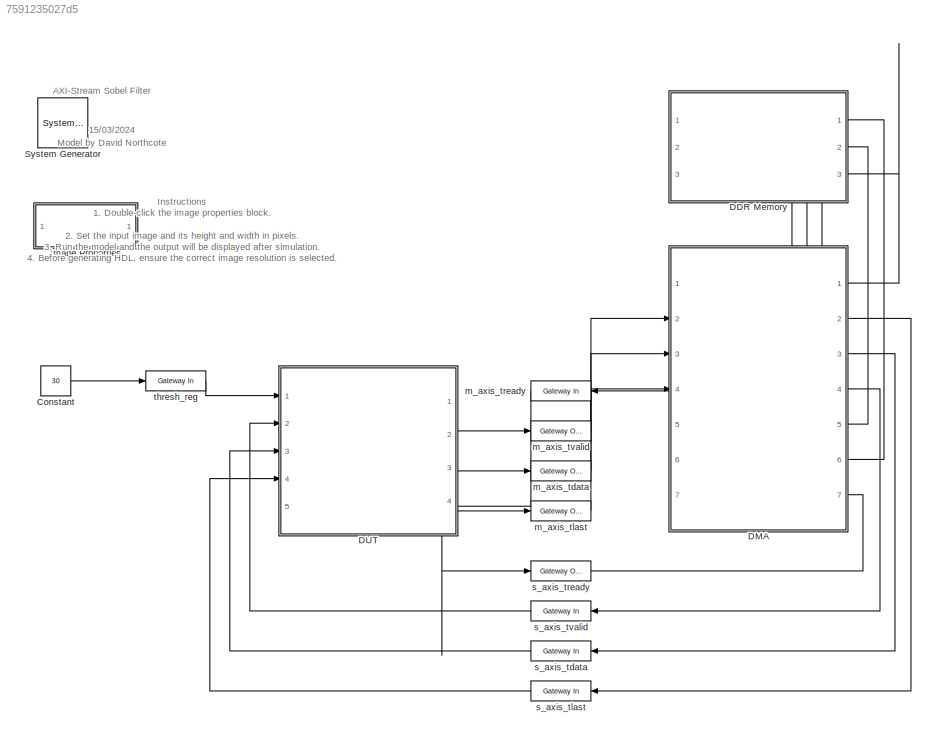
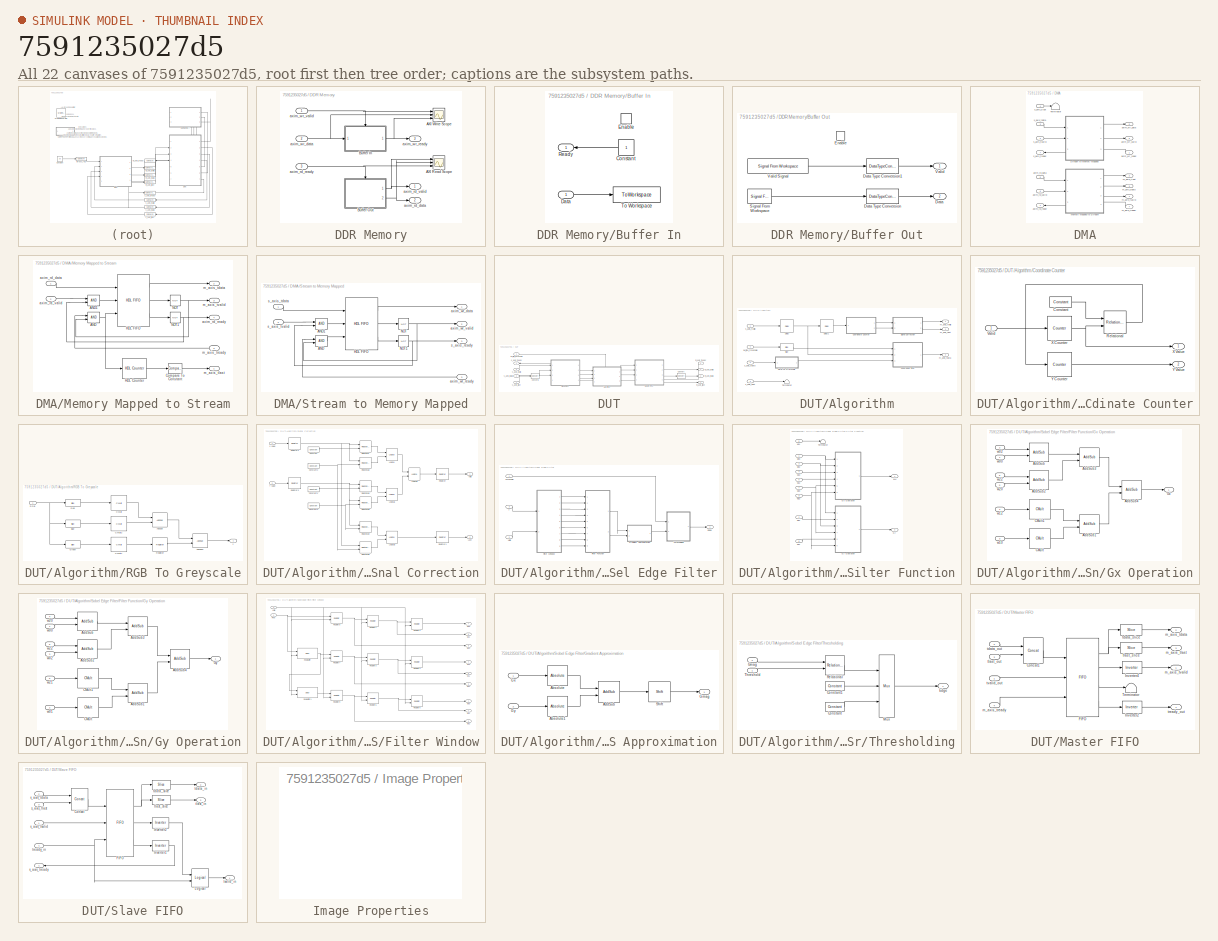
[diagram: thumbnail index - all 22 canvases of the model, root first then tree order]
MODEL slx_7591235027d5
KIND model
CONFIG AbsTol = auto
CONFIG EnableMultiTasking = off
CONFIG FixedStep = auto
CONFIG InitFcn = height = str2num(get_param([bdroot, '/Image Properties'], 'height'));\nwidth = str2num(get_param([bdroot, '/Image Properties'], 'width'));\nI = imresize(eval(get_param([bdroot, '/Image Properties'], 'image')), [(height) (width)]);\nI = padarray(I, [1 1], 'replicate');\nbufferOut = uint32(double(I(:,:,1))*2^16 + double(I(:,:,3))*2^8 + double(I(:,:,2)));\nbufferOut = reshape(bufferOut', [width+2, height+...<+30ch>
CONFIG MaxStep = auto
CONFIG MinStep = auto
CONFIG PostLoadFcn = ratio = 1/6;\nset(0,'units','pixels');\npixels = get(0,'screensize');\npoint1 = round(pixels(3)*ratio); \npoint2 = round(pixels(4)*ratio); \npoint3 = pixels(3)-round(pixels(3)*ratio); \npoint4 = pixels(4)-round(pixels(4)*ratio);\nh = get_param(gcs,'handle');\nset_param(h,'location',[point1 point2 point3 point4]);\npause(0.2);\nset_param(h,'Zoomfactor','fit to view');\n\nclear ratio pixels point1 point2 point3...<+120ch>
CONFIG PreLoadFcn = clear all;\n\nfs = 100e6;
CONFIG RelTol = 1e-3
CONFIG SampleTimeConstraint = Unconstrained
CONFIG Solver = VariableStepAuto
CONFIG SolverName = VariableStepAuto
CONFIG StartTime = 0.0
CONFIG StopFcn = imtool(I);\nimtool(uint8(reshape(bufferIn, [width, height])'));
CONFIG StopTime = (height*width)/fs + (width*6)/fs + 128/fs
BLOCK [Reference]  System Generator  REF=xbsIndex_r4/ System Generator
  AttributesFormatString = System\nGenerator
  Ports = []
  SourceBlock = xbsIndex_r4/ System Generator
  SourceType = Xilinx System Generator Block
  Tag = genX
  UserDataPersistent = on
BLOCK [Constant] Constant
  SampleTime = -1
  Value = 30
BLOCK [SubSystem] DDR Memory
  PortSchema = {"entries":[{"content":{"sides":[{"content":{"connectorIds":["Out3","In1","In2"]},"type":"ConnectorPlacement.EquallySpacedRectSide","uuid":"10820561-fcd3-42da-ac38-14c6f993f770"},{"content":{"connectorIds":["In3","Out1","Out2"],"side":"RIGHT"},"type":"ConnectorPlacement.EquallySpacedRectSide","uuid":"072276f7-1cf8-495f-bb0a-1bca7e8326ea"},{"content":{"connectorIds":[],"side":"TOP"},"type":"Connect...<+268ch>
  Ports = [3, 3]
  RequestExecContextInheritance = off
BLOCK [Scope] DDR Memory/AXI Read Scope
  DefaultConfigurationName = spbscopes.TimeScopeBlockCfg
  Floating = off
  NumInputPorts = 3
  Ports = [3]
  ScopeSpecificationString = spbscopes.TimeScopeBlockCfg('CurrentConfiguration', extmgr.ConfigurationSet(extmgr.Configuration('Core','General UI',true,'FigureColor',[0.8 0.8 0.8]),extmgr.Configuration('Core','Source UI',true),extmgr.Configuration('Sources','WiredSimulink',true,'DataLoggingVariableName','ScopeData1'),extmgr.Configuration('Visuals','Time Domain',true,'DisplayLayoutDimensions',[3 1],'DisplayPropertyDefaults',str...<+4960ch>
  UserDataPersistent = on
BLOCK [Scope] DDR Memory/AXI Write Scope
  DefaultConfigurationName = spbscopes.TimeScopeBlockCfg
  Floating = off
  NumInputPorts = 3
  Ports = [3]
  ScopeSpecificationString = spbscopes.TimeScopeBlockCfg('CurrentConfiguration', extmgr.ConfigurationSet(extmgr.Configuration('Core','General UI',true,'FigureColor',[0.8 0.8 0.8]),extmgr.Configuration('Core','Source UI',true),extmgr.Configuration('Sources','WiredSimulink',true),extmgr.Configuration('Visuals','Time Domain',true,'DisplayLayoutDimensions',[3 1],'DisplayPropertyDefaults',struct('YLabelReal','Amplitude','ColorOrde...<+4884ch>
  UserDataPersistent = on
BLOCK [SubSystem] DDR Memory/Buffer In
  Ports = [1, 1, 1]
  RequestExecContextInheritance = off
BLOCK [Constant] DDR Memory/Buffer In/Constant
  OutDataTypeStr = boolean
  SampleTime = -1
BLOCK [Inport] DDR Memory/Buffer In/Data
BLOCK [EnablePort] DDR Memory/Buffer In/Enable
  Ports = []
BLOCK [Outport] DDR Memory/Buffer In/Ready
BLOCK [ToWorkspace] DDR Memory/Buffer In/To Workspace
  FixptAsFi = on
  MaxDataPoints = inf
  Ports = [1]
  SampleTime = -1
  VariableName = bufferIn
BLOCK [SubSystem] DDR Memory/Buffer Out
  Ports = [0, 2, 1]
  RequestExecContextInheritance = off
BLOCK [Outport] DDR Memory/Buffer Out/Data
  Port = 2
BLOCK [DataTypeConversion] DDR Memory/Buffer Out/Data Type Conversion
  OutDataTypeStr = dtypeStr
  RndMeth = Floor
  SaturateOnIntegerOverflow = off
BLOCK [DataTypeConversion] DDR Memory/Buffer Out/Data Type Conversion1
  OutDataTypeStr = boolean
  RndMeth = Floor
  SaturateOnIntegerOverflow = off
BLOCK [EnablePort] DDR Memory/Buffer Out/Enable
  Ports = []
BLOCK [Reference] DDR Memory/Buffer Out/Signal From Workspace  REF=dspsrcs4/Signal From
Workspace
  Ports = [0, 1]
  SourceBlock = dspsrcs4/Signal From\nWorkspace
  SourceProductBaseCode = DS
  SourceType = Signal From Workspace
BLOCK [Outport] DDR Memory/Buffer Out/Valid
BLOCK [Reference] DDR Memory/Buffer Out/Valid Signal  REF=dspsrcs4/Signal From
Workspace
  Ports = [0, 1]
  SourceBlock = dspsrcs4/Signal From\nWorkspace
  SourceProductBaseCode = DS
  SourceType = Signal From Workspace
BLOCK [Outport] DDR Memory/axim_rd_data
  Port = 2
BLOCK [Inport] DDR Memory/axim_rd_ready
  Port = 3
BLOCK [Outport] DDR Memory/axim_rd_valid
BLOCK [Inport] DDR Memory/axim_wr_data
  Port = 2
BLOCK [Outport] DDR Memory/axim_wr_ready
  Port = 3
BLOCK [Inport] DDR Memory/axim_wr_valid
BLOCK [SubSystem] DMA
  PortSchema = {"entries":[{"content":{"sides":[{"content":{"connectorIds":["Out5","Out6","In1","Out7","In2","In3","In4"]},"type":"ConnectorPlacement.EquallySpacedRectSide","uuid":"c102abcb-2e00-4fd7-85df-5b9b0b898bd0"},{"content":{"connectorIds":["In5","In6","Out1","Out2","Out3","Out4","In7"],"side":"RIGHT"},"type":"ConnectorPlacement.EquallySpacedRectSide","uuid":"9e178eef-1e1d-41e3-971e-2eb7c6a5387e"},{"conte...<+464ch>
  Ports = [7, 7]
  RequestExecContextInheritance = off
BLOCK [SubSystem] DMA/Memory Mapped to Stream
  PortSchema = {"entries":[{"content":{"sides":[{"content":{"connectorIds":["In1","In2","Out4"]},"type":"ConnectorPlacement.EquallySpacedRectSide","uuid":"10820561-fcd3-42da-ac38-14c6f993f770"},{"content":{"connectorIds":["Out1","Out2","Out3","In3"],"side":"RIGHT"},"type":"ConnectorPlacement.EquallySpacedRectSide","uuid":"072276f7-1cf8-495f-bb0a-1bca7e8326ea"},{"content":{"connectorIds":[],"side":"TOP"},"type":"...<+275ch>
  Ports = [3, 4]
  RequestExecContextInheritance = off
BLOCK [Logic] DMA/Memory Mapped to Stream/AND
  AllPortsSameDT = off
  IconShape = distinctive
  OutDataTypeStr = boolean
  Ports = [2, 1]
BLOCK [Logic] DMA/Memory Mapped to Stream/AND1
  AllPortsSameDT = off
  IconShape = distinctive
  OutDataTypeStr = boolean
  Ports = [2, 1]
BLOCK [Reference] DMA/Memory Mapped to Stream/Compare To Constant  REF=simulink/Logic and Bit
Operations/Compare
To Constant
  Ports = [1, 1]
  SourceBlock = simulink/Logic and Bit\nOperations/Compare\nTo Constant
  SourceProductBaseCode = SL
  SourceType = Compare To Constant
BLOCK [Reference] DMA/Memory Mapped to Stream/HDL Counter  REF=hdlsllib/Sources/HDL Counter
  Ports = [1, 1]
  SourceBlock = hdlsllib/Sources/HDL Counter
  SourceProductBaseCode = SL
  SourceType = HDL Counter
BLOCK [Reference] DMA/Memory Mapped to Stream/HDL FIFO  REF=hdlsllib/HDL RAMs/HDL FIFO
  Ports = [3, 3]
  SourceBlock = hdlsllib/HDL RAMs/HDL FIFO
  SourceProductBaseCode = SL
  SourceType = HDL_FIFO
BLOCK [Logic] DMA/Memory Mapped to Stream/NOT
  AllPortsSameDT = off
  IconShape = distinctive
  Operator = NOT
  OutDataTypeStr = boolean
  Ports = [1, 1]
BLOCK [Logic] DMA/Memory Mapped to Stream/NOT1
  AllPortsSameDT = off
  IconShape = distinctive
  Operator = NOT
  OutDataTypeStr = boolean
  Ports = [1, 1]
BLOCK [Inport] DMA/Memory Mapped to Stream/axim_rd_data
BLOCK [Outport] DMA/Memory Mapped to Stream/axim_rd_ready
  Port = 4
  VectorParamsAs1DForOutWhenUnconnected = off
BLOCK [Inport] DMA/Memory Mapped to Stream/axim_rd_valid
  Port = 2
BLOCK [Outport] DMA/Memory Mapped to Stream/m_axis_tdata
  Port = 2
  VectorParamsAs1DForOutWhenUnconnected = off
BLOCK [Outport] DMA/Memory Mapped to Stream/m_axis_tlast
  VectorParamsAs1DForOutWhenUnconnected = off
BLOCK [Inport] DMA/Memory Mapped to Stream/m_axis_tready
  Port = 3
BLOCK [Outport] DMA/Memory Mapped to Stream/m_axis_tvalid
  Port = 3
  VectorParamsAs1DForOutWhenUnconnected = off
BLOCK [SubSystem] DMA/Stream to Memory Mapped
  PortSchema = {"entries":[{"content":{"sides":[{"content":{"connectorIds":["In1","In2","Out3"]},"type":"ConnectorPlacement.EquallySpacedRectSide","uuid":"10820561-fcd3-42da-ac38-14c6f993f770"},{"content":{"connectorIds":["Out1","Out2","In3"],"side":"RIGHT"},"type":"ConnectorPlacement.EquallySpacedRectSide","uuid":"072276f7-1cf8-495f-bb0a-1bca7e8326ea"},{"content":{"connectorIds":[],"side":"TOP"},"type":"Connect...<+268ch>
  Ports = [3, 3]
  RequestExecContextInheritance = off
BLOCK [Logic] DMA/Stream to Memory Mapped/AND
  AllPortsSameDT = off
  IconShape = distinctive
  OutDataTypeStr = boolean
  Ports = [2, 1]
BLOCK [Logic] DMA/Stream to Memory Mapped/AND1
  AllPortsSameDT = off
  IconShape = distinctive
  OutDataTypeStr = boolean
  Ports = [2, 1]
BLOCK [Reference] DMA/Stream to Memory Mapped/HDL FIFO  REF=hdlsllib/HDL RAMs/HDL FIFO
  Ports = [3, 3]
  SourceBlock = hdlsllib/HDL RAMs/HDL FIFO
  SourceProductBaseCode = SL
  SourceType = HDL_FIFO
BLOCK [Logic] DMA/Stream to Memory Mapped/NOT
  AllPortsSameDT = off
  IconShape = distinctive
  Operator = NOT
  OutDataTypeStr = boolean
  Ports = [1, 1]
BLOCK [Logic] DMA/Stream to Memory Mapped/NOT1
  AllPortsSameDT = off
  IconShape = distinctive
  Operator = NOT
  OutDataTypeStr = boolean
  Ports = [1, 1]
BLOCK [Outport] DMA/Stream to Memory Mapped/axim_wr_data
  VectorParamsAs1DForOutWhenUnconnected = off
BLOCK [Inport] DMA/Stream to Memory Mapped/axim_wr_ready
  Port = 3
BLOCK [Outport] DMA/Stream to Memory Mapped/axim_wr_valid
  Port = 2
  VectorParamsAs1DForOutWhenUnconnected = off
BLOCK [Outport] DMA/Stream to Memory Mapped/s_axis_ready
  Port = 3
  VectorParamsAs1DForOutWhenUnconnected = off
BLOCK [Inport] DMA/Stream to Memory Mapped/s_axis_tdata
BLOCK [Inport] DMA/Stream to Memory Mapped/s_axis_tvalid
  Port = 2
BLOCK [Terminator] DMA/Terminator
BLOCK [Inport] DMA/axim_rd_data
  Port = 5
BLOCK [Outport] DMA/axim_rd_ready
BLOCK [Inport] DMA/axim_rd_valid
  Port = 6
BLOCK [Outport] DMA/axim_wr_data
  Port = 5
BLOCK [Inport] DMA/axim_wr_ready
BLOCK [Outport] DMA/axim_wr_valid
  Port = 6
BLOCK [Outport] DMA/m_axis_tdata
  Port = 3
  VectorParamsAs1DForOutWhenUnconnected = off
BLOCK [Outport] DMA/m_axis_tlast
  Port = 2
  VectorParamsAs1DForOutWhenUnconnected = off
BLOCK [Inport] DMA/m_axis_tready
  Port = 7
BLOCK [Outport] DMA/m_axis_tvalid
  Port = 4
  VectorParamsAs1DForOutWhenUnconnected = off
BLOCK [Inport] DMA/s_axis_tdata
  Port = 3
BLOCK [Inport] DMA/s_axis_tlast
  Port = 4
BLOCK [Outport] DMA/s_axis_tready
  Port = 7
  VectorParamsAs1DForOutWhenUnconnected = off
BLOCK [Inport] DMA/s_axis_tvalid
  Port = 2
BLOCK [SubSystem] DUT
  PortSchema = {"entries":[{"content":{"sides":[{"content":{"connectorIds":["In1","Out4","In2","In3","In4"]},"type":"ConnectorPlacement.EquallySpacedRectSide","uuid":"c102abcb-2e00-4fd7-85df-5b9b0b898bd0"},{"content":{"connectorIds":["In5","Out1","Out2","Out3"],"side":"RIGHT"},"type":"ConnectorPlacement.EquallySpacedRectSide","uuid":"9e178eef-1e1d-41e3-971e-2eb7c6a5387e"},{"content":{"connectorIds":[],"side":"TO...<+287ch>
  Ports = [5, 4]
  RequestExecContextInheritance = off
BLOCK [SubSystem] DUT/Algorithm
  PortSchema = {"entries":[{"content":{"sides":[{"content":{"connectorIds":["In1","In2","In3"]},"type":"ConnectorPlacement.EquallySpacedRectSide","uuid":"bc8f8d6b-03d4-4b1c-a4ca-076773aa8b9e"},{"content":{"connectorIds":["Out1","Out2","Out3"],"side":"RIGHT"},"type":"ConnectorPlacement.EquallySpacedRectSide","uuid":"0d37fd61-55f1-43d8-b642-e7957f527b3a"},{"content":{"connectorIds":["In4"],"side":"TOP"},"type":"Co...<+273ch>
  Ports = [4, 3]
  RequestExecContextInheritance = off
BLOCK [SubSystem] DUT/Algorithm/Coordinate Counter
  Ports = [1, 2]
  RequestExecContextInheritance = off
BLOCK [Reference] DUT/Algorithm/Coordinate Counter/Constant  REF=xbsIndex_r4/Constant
  Ports = [0, 1]
  SourceBlock = xbsIndex_r4/Constant
  SourceType = Xilinx Constant Block Block
BLOCK [Reference] DUT/Algorithm/Coordinate Counter/Relational  REF=xbsIndex_r4/Relational
  Ports = [2, 1]
  SourceBlock = xbsIndex_r4/Relational
  SourceType = Xilinx Arithmetic Relational Operator Block
BLOCK [Inport] DUT/Algorithm/Coordinate Counter/Valid
BLOCK [Reference] DUT/Algorithm/Coordinate Counter/X Counter  REF=xbsIndex_r4/Counter
  Ports = [1, 1]
  SourceBlock = xbsIndex_r4/Counter
  SourceType = Xilinx Counter Block
BLOCK [Outport] DUT/Algorithm/Coordinate Counter/X Value
  VectorParamsAs1DForOutWhenUnconnected = off
BLOCK [Reference] DUT/Algorithm/Coordinate Counter/Y Counter  REF=xbsIndex_r4/Counter
  Ports = [1, 1]
  SourceBlock = xbsIndex_r4/Counter
  SourceType = Xilinx Counter Block
BLOCK [Outport] DUT/Algorithm/Coordinate Counter/Y Value
  Port = 2
  VectorParamsAs1DForOutWhenUnconnected = off
BLOCK [Reference] DUT/Algorithm/Delay  REF=xbsIndex_r4/Delay
  Ports = [1, 1]
  SourceBlock = xbsIndex_r4/Delay
  SourceType = Xilinx Delay Block
BLOCK [Reference] DUT/Algorithm/Delay1  REF=xbsIndex_r4/Delay
  Ports = [1, 1]
  SourceBlock = xbsIndex_r4/Delay
  SourceType = Xilinx Delay Block
BLOCK [SubSystem] DUT/Algorithm/RGB To Greyscale
  Ports = [1, 1]
  RequestExecContextInheritance = off
BLOCK [Reference] DUT/Algorithm/RGB To Greyscale/AddSub  REF=xbsIndex_r4/AddSub
  Ports = [2, 1]
  SourceBlock = xbsIndex_r4/AddSub
  SourceType = Xilinx Adder/Subtracter Block
BLOCK [Reference] DUT/Algorithm/RGB To Greyscale/AddSub1  REF=xbsIndex_r4/AddSub
  Ports = [2, 1]
  SourceBlock = xbsIndex_r4/AddSub
  SourceType = Xilinx Adder/Subtracter Block
BLOCK [Reference] DUT/Algorithm/RGB To Greyscale/Blue  REF=xbsIndex_r4/Slice
  Ports = [1, 1]
  SourceBlock = xbsIndex_r4/Slice
  SourceType = Xilinx Bit Slice Extractor Block
BLOCK [Reference] DUT/Algorithm/RGB To Greyscale/CMult  REF=xbsIndex_r4/CMult
  Ports = [1, 1]
  SourceBlock = xbsIndex_r4/CMult
  SourceType = Xilinx Constant Multiplier Block
BLOCK [Reference] DUT/Algorithm/RGB To Greyscale/CMult1  REF=xbsIndex_r4/CMult
  Ports = [1, 1]
  SourceBlock = xbsIndex_r4/CMult
  SourceType = Xilinx Constant Multiplier Block
BLOCK [Reference] DUT/Algorithm/RGB To Greyscale/CMult2  REF=xbsIndex_r4/CMult
  Ports = [1, 1]
  SourceBlock = xbsIndex_r4/CMult
  SourceType = Xilinx Constant Multiplier Block
BLOCK [Reference] DUT/Algorithm/RGB To Greyscale/Green  REF=xbsIndex_r4/Slice
  Ports = [1, 1]
  SourceBlock = xbsIndex_r4/Slice
  SourceType = Xilinx Bit Slice Extractor Block
BLOCK [Inport] DUT/Algorithm/RGB To Greyscale/RGB
BLOCK [Reference] DUT/Algorithm/RGB To Greyscale/Red  REF=xbsIndex_r4/Slice
  Ports = [1, 1]
  SourceBlock = xbsIndex_r4/Slice
  SourceType = Xilinx Bit Slice Extractor Block
BLOCK [Reference] DUT/Algorithm/RGB To Greyscale/Register  REF=xbsIndex_r4/Register
  Ports = [1, 1]
  SourceBlock = xbsIndex_r4/Register
  SourceType = Xilinx Register Block
BLOCK [Outport] DUT/Algorithm/RGB To Greyscale/Y
  VectorParamsAs1DForOutWhenUnconnected = off
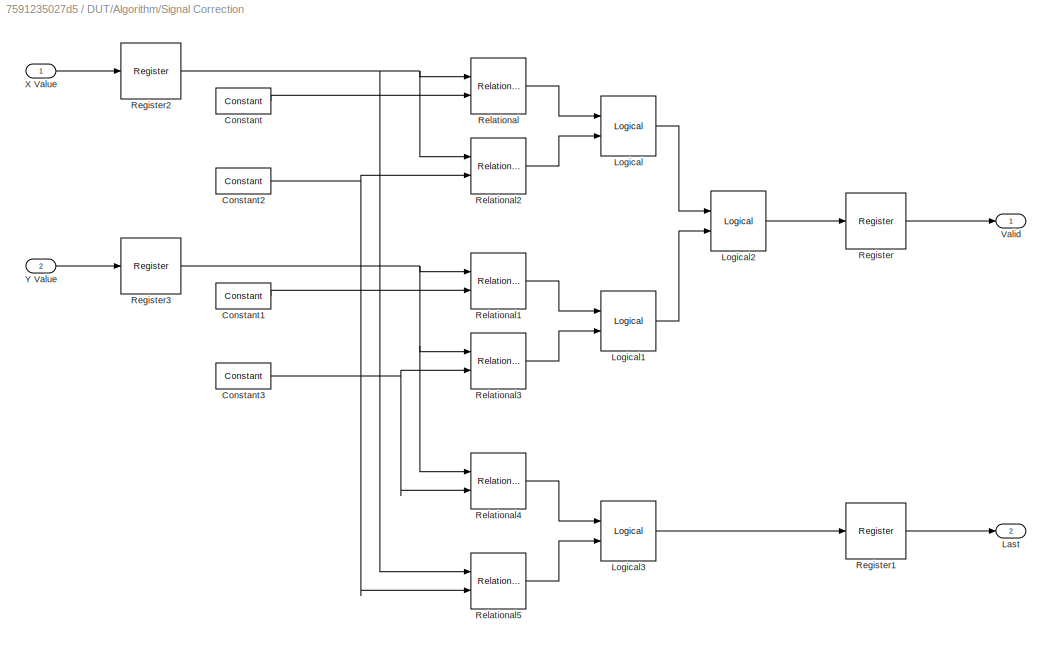
BLOCK [SubSystem] DUT/Algorithm/Signal Correction
  Ports = [2, 2]
  RequestExecContextInheritance = off
BLOCK [Reference] DUT/Algorithm/Signal Correction/Constant  REF=xbsIndex_r4/Constant
  Ports = [0, 1]
  SourceBlock = xbsIndex_r4/Constant
  SourceType = Xilinx Constant Block Block
BLOCK [Reference] DUT/Algorithm/Signal Correction/Constant1  REF=xbsIndex_r4/Constant
  Ports = [0, 1]
  SourceBlock = xbsIndex_r4/Constant
  SourceType = Xilinx Constant Block Block
BLOCK [Reference] DUT/Algorithm/Signal Correction/Constant2  REF=xbsIndex_r4/Constant
  Ports = [0, 1]
  SourceBlock = xbsIndex_r4/Constant
  SourceType = Xilinx Constant Block Block
BLOCK [Reference] DUT/Algorithm/Signal Correction/Constant3  REF=xbsIndex_r4/Constant
  Ports = [0, 1]
  SourceBlock = xbsIndex_r4/Constant
  SourceType = Xilinx Constant Block Block
BLOCK [Outport] DUT/Algorithm/Signal Correction/Last
  Port = 2
  VectorParamsAs1DForOutWhenUnconnected = off
BLOCK [Reference] DUT/Algorithm/Signal Correction/Logical  REF=xbsIndex_r4/Logical
  Ports = [2, 1]
  SourceBlock = xbsIndex_r4/Logical
  SourceType = Xilinx Logical Block Block
BLOCK [Reference] DUT/Algorithm/Signal Correction/Logical1  REF=xbsIndex_r4/Logical
  Ports = [2, 1]
  SourceBlock = xbsIndex_r4/Logical
  SourceType = Xilinx Logical Block Block
BLOCK [Reference] DUT/Algorithm/Signal Correction/Logical2  REF=xbsIndex_r4/Logical
  Ports = [2, 1]
  SourceBlock = xbsIndex_r4/Logical
  SourceType = Xilinx Logical Block Block
BLOCK [Reference] DUT/Algorithm/Signal Correction/Logical3  REF=xbsIndex_r4/Logical
  Ports = [2, 1]
  SourceBlock = xbsIndex_r4/Logical
  SourceType = Xilinx Logical Block Block
BLOCK [Reference] DUT/Algorithm/Signal Correction/Register  REF=xbsIndex_r4/Register
  Ports = [1, 1]
  SourceBlock = xbsIndex_r4/Register
  SourceType = Xilinx Register Block
BLOCK [Reference] DUT/Algorithm/Signal Correction/Register1  REF=xbsIndex_r4/Register
  Ports = [1, 1]
  SourceBlock = xbsIndex_r4/Register
  SourceType = Xilinx Register Block
BLOCK [Reference] DUT/Algorithm/Signal Correction/Register2  REF=xbsIndex_r4/Register
  Ports = [1, 1]
  SourceBlock = xbsIndex_r4/Register
  SourceType = Xilinx Register Block
BLOCK [Reference] DUT/Algorithm/Signal Correction/Register3  REF=xbsIndex_r4/Register
  Ports = [1, 1]
  SourceBlock = xbsIndex_r4/Register
  SourceType = Xilinx Register Block
BLOCK [Reference] DUT/Algorithm/Signal Correction/Relational  REF=xbsIndex_r4/Relational
  Ports = [2, 1]
  SourceBlock = xbsIndex_r4/Relational
  SourceType = Xilinx Arithmetic Relational Operator Block
BLOCK [Reference] DUT/Algorithm/Signal Correction/Relational1  REF=xbsIndex_r4/Relational
  Ports = [2, 1]
  SourceBlock = xbsIndex_r4/Relational
  SourceType = Xilinx Arithmetic Relational Operator Block
BLOCK [Reference] DUT/Algorithm/Signal Correction/Relational2  REF=xbsIndex_r4/Relational
  Ports = [2, 1]
  SourceBlock = xbsIndex_r4/Relational
  SourceType = Xilinx Arithmetic Relational Operator Block
BLOCK [Reference] DUT/Algorithm/Signal Correction/Relational3  REF=xbsIndex_r4/Relational
  Ports = [2, 1]
  SourceBlock = xbsIndex_r4/Relational
  SourceType = Xilinx Arithmetic Relational Operator Block
BLOCK [Reference] DUT/Algorithm/Signal Correction/Relational4  REF=xbsIndex_r4/Relational
  Ports = [2, 1]
  SourceBlock = xbsIndex_r4/Relational
  SourceType = Xilinx Arithmetic Relational Operator Block
BLOCK [Reference] DUT/Algorithm/Signal Correction/Relational5  REF=xbsIndex_r4/Relational
  Ports = [2, 1]
  SourceBlock = xbsIndex_r4/Relational
  SourceType = Xilinx Arithmetic Relational Operator Block
BLOCK [Outport] DUT/Algorithm/Signal Correction/Valid
  VectorParamsAs1DForOutWhenUnconnected = off
BLOCK [Inport] DUT/Algorithm/Signal Correction/X Value
BLOCK [Inport] DUT/Algorithm/Signal Correction/Y Value
  Port = 2
BLOCK [Reference] DUT/Algorithm/Slice  REF=xbsIndex_r4/Slice
  Ports = [1, 1]
  SourceBlock = xbsIndex_r4/Slice
  SourceType = Xilinx Bit Slice Extractor Block
BLOCK [SubSystem] DUT/Algorithm/Sobel Edge Filter
  Ports = [3, 1]
  RequestExecContextInheritance = off
BLOCK [Outport] DUT/Algorithm/Sobel Edge Filter/Edge
  VectorParamsAs1DForOutWhenUnconnected = off
BLOCK [SubSystem] DUT/Algorithm/Sobel Edge Filter/Filter Function
  Ports = [9, 2]
  RequestExecContextInheritance = off
BLOCK [Outport] DUT/Algorithm/Sobel Edge Filter/Filter Function/Gx
  VectorParamsAs1DForOutWhenUnconnected = off
BLOCK [SubSystem] DUT/Algorithm/Sobel Edge Filter/Filter Function/Gx Operation
  Ports = [6, 1]
  RequestExecContextInheritance = off
BLOCK [Reference] DUT/Algorithm/Sobel Edge Filter/Filter Function/Gx Operation/AddSub  REF=xbsIndex_r4/AddSub
  Ports = [2, 1]
  SourceBlock = xbsIndex_r4/AddSub
  SourceType = Xilinx Adder/Subtracter Block
BLOCK [Reference] DUT/Algorithm/Sobel Edge Filter/Filter Function/Gx Operation/AddSub1  REF=xbsIndex_r4/AddSub
  Ports = [2, 1]
  SourceBlock = xbsIndex_r4/AddSub
  SourceType = Xilinx Adder/Subtracter Block
BLOCK [Reference] DUT/Algorithm/Sobel Edge Filter/Filter Function/Gx Operation/AddSub2  REF=xbsIndex_r4/AddSub
  Ports = [2, 1]
  SourceBlock = xbsIndex_r4/AddSub
  SourceType = Xilinx Adder/Subtracter Block
BLOCK [Reference] DUT/Algorithm/Sobel Edge Filter/Filter Function/Gx Operation/AddSub3  REF=xbsIndex_r4/AddSub
  Ports = [2, 1]
  SourceBlock = xbsIndex_r4/AddSub
  SourceType = Xilinx Adder/Subtracter Block
BLOCK [Reference] DUT/Algorithm/Sobel Edge Filter/Filter Function/Gx Operation/AddSub4  REF=xbsIndex_r4/AddSub
  Ports = [2, 1]
  SourceBlock = xbsIndex_r4/AddSub
  SourceType = Xilinx Adder/Subtracter Block
BLOCK [Reference] DUT/Algorithm/Sobel Edge Filter/Filter Function/Gx Operation/CMult  REF=xbsIndex_r4/CMult
  Ports = [1, 1]
  SourceBlock = xbsIndex_r4/CMult
  SourceType = Xilinx Constant Multiplier Block
BLOCK [Reference] DUT/Algorithm/Sobel Edge Filter/Filter Function/Gx Operation/CMult1  REF=xbsIndex_r4/CMult
  Ports = [1, 1]
  SourceBlock = xbsIndex_r4/CMult
  SourceType = Xilinx Constant Multiplier Block
BLOCK [Outport] DUT/Algorithm/Sobel Edge Filter/Filter Function/Gx Operation/Gx
  VectorParamsAs1DForOutWhenUnconnected = off
BLOCK [Inport] DUT/Algorithm/Sobel Edge Filter/Filter Function/Gx Operation/w00
BLOCK [Inport] DUT/Algorithm/Sobel Edge Filter/Filter Function/Gx Operation/w02
  Port = 2
BLOCK [Inport] DUT/Algorithm/Sobel Edge Filter/Filter Function/Gx Operation/w10
  Port = 3
BLOCK [Inport] DUT/Algorithm/Sobel Edge Filter/Filter Function/Gx Operation/w12
  Port = 4
BLOCK [Inport] DUT/Algorithm/Sobel Edge Filter/Filter Function/Gx Operation/w20
  Port = 5
BLOCK [Inport] DUT/Algorithm/Sobel Edge Filter/Filter Function/Gx Operation/w22
  Port = 6
BLOCK [Outport] DUT/Algorithm/Sobel Edge Filter/Filter Function/Gy
  Port = 2
  VectorParamsAs1DForOutWhenUnconnected = off
BLOCK [SubSystem] DUT/Algorithm/Sobel Edge Filter/Filter Function/Gy Operation
  Ports = [6, 1]
  RequestExecContextInheritance = off
BLOCK [Reference] DUT/Algorithm/Sobel Edge Filter/Filter Function/Gy Operation/AddSub  REF=xbsIndex_r4/AddSub
  Ports = [2, 1]
  SourceBlock = xbsIndex_r4/AddSub
  SourceType = Xilinx Adder/Subtracter Block
BLOCK [Reference] DUT/Algorithm/Sobel Edge Filter/Filter Function/Gy Operation/AddSub1  REF=xbsIndex_r4/AddSub
  Ports = [2, 1]
  SourceBlock = xbsIndex_r4/AddSub
  SourceType = Xilinx Adder/Subtracter Block
BLOCK [Reference] DUT/Algorithm/Sobel Edge Filter/Filter Function/Gy Operation/AddSub2  REF=xbsIndex_r4/AddSub
  Ports = [2, 1]
  SourceBlock = xbsIndex_r4/AddSub
  SourceType = Xilinx Adder/Subtracter Block
BLOCK [Reference] DUT/Algorithm/Sobel Edge Filter/Filter Function/Gy Operation/AddSub3  REF=xbsIndex_r4/AddSub
  Ports = [2, 1]
  SourceBlock = xbsIndex_r4/AddSub
  SourceType = Xilinx Adder/Subtracter Block
BLOCK [Reference] DUT/Algorithm/Sobel Edge Filter/Filter Function/Gy Operation/AddSub4  REF=xbsIndex_r4/AddSub
  Ports = [2, 1]
  SourceBlock = xbsIndex_r4/AddSub
  SourceType = Xilinx Adder/Subtracter Block
BLOCK [Reference] DUT/Algorithm/Sobel Edge Filter/Filter Function/Gy Operation/CMult  REF=xbsIndex_r4/CMult
  Ports = [1, 1]
  SourceBlock = xbsIndex_r4/CMult
  SourceType = Xilinx Constant Multiplier Block
BLOCK [Reference] DUT/Algorithm/Sobel Edge Filter/Filter Function/Gy Operation/CMult1  REF=xbsIndex_r4/CMult
  Ports = [1, 1]
  SourceBlock = xbsIndex_r4/CMult
  SourceType = Xilinx Constant Multiplier Block
BLOCK [Outport] DUT/Algorithm/Sobel Edge Filter/Filter Function/Gy Operation/Gy
  VectorParamsAs1DForOutWhenUnconnected = off
BLOCK [Inport] DUT/Algorithm/Sobel Edge Filter/Filter Function/Gy Operation/w00
BLOCK [Inport] DUT/Algorithm/Sobel Edge Filter/Filter Function/Gy Operation/w01
  Port = 2
BLOCK [Inport] DUT/Algorithm/Sobel Edge Filter/Filter Function/Gy Operation/w02
  Port = 3
BLOCK [Inport] DUT/Algorithm/Sobel Edge Filter/Filter Function/Gy Operation/w20
  Port = 4
BLOCK [Inport] DUT/Algorithm/Sobel Edge Filter/Filter Function/Gy Operation/w21
  Port = 5
BLOCK [Inport] DUT/Algorithm/Sobel Edge Filter/Filter Function/Gy Operation/w22
  Port = 6
BLOCK [Terminator] DUT/Algorithm/Sobel Edge Filter/Filter Function/Terminator
BLOCK [Inport] DUT/Algorithm/Sobel Edge Filter/Filter Function/w00
BLOCK [Inport] DUT/Algorithm/Sobel Edge Filter/Filter Function/w01
  Port = 2
BLOCK [Inport] DUT/Algorithm/Sobel Edge Filter/Filter Function/w02
  Port = 3
BLOCK [Inport] DUT/Algorithm/Sobel Edge Filter/Filter Function/w10
  Port = 4
BLOCK [Inport] DUT/Algorithm/Sobel Edge Filter/Filter Function/w11
  Port = 5
BLOCK [Inport] DUT/Algorithm/Sobel Edge Filter/Filter Function/w12
  Port = 6
BLOCK [Inport] DUT/Algorithm/Sobel Edge Filter/Filter Function/w20
  Port = 7
BLOCK [Inport] DUT/Algorithm/Sobel Edge Filter/Filter Function/w21
  Port = 8
BLOCK [Inport] DUT/Algorithm/Sobel Edge Filter/Filter Function/w22
  Port = 9
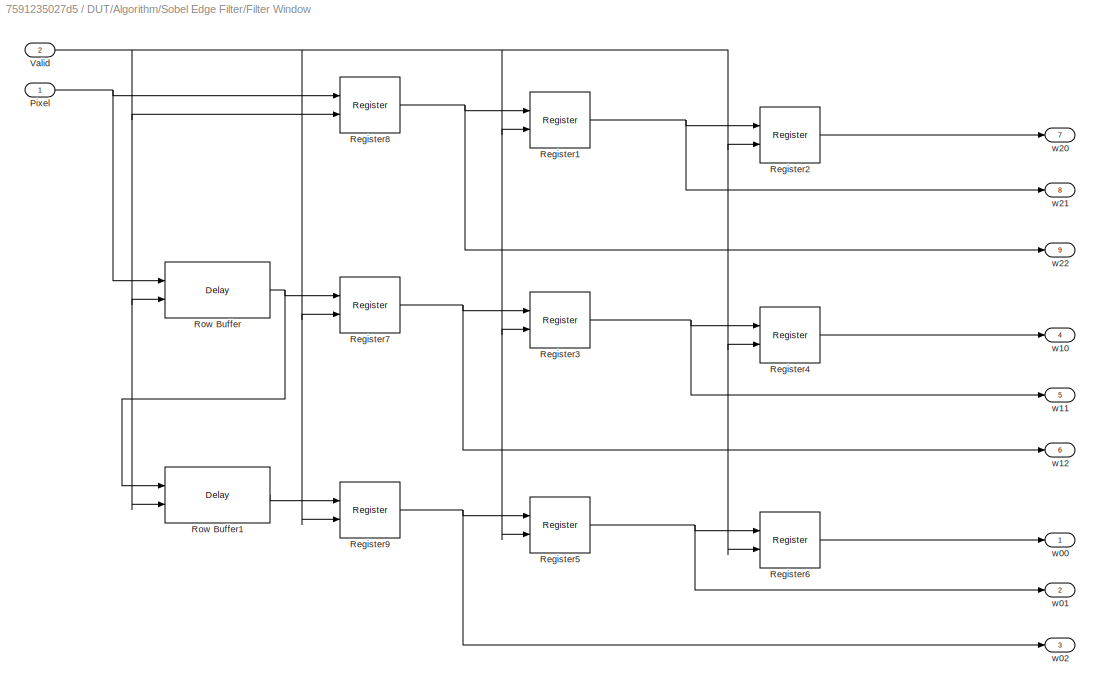
BLOCK [SubSystem] DUT/Algorithm/Sobel Edge Filter/Filter Window
  Ports = [2, 9]
  RequestExecContextInheritance = off
BLOCK [Inport] DUT/Algorithm/Sobel Edge Filter/Filter Window/Pixel
BLOCK [Reference] DUT/Algorithm/Sobel Edge Filter/Filter Window/Register1  REF=xbsIndex_r4/Register
  Ports = [2, 1]
  SourceBlock = xbsIndex_r4/Register
  SourceType = Xilinx Register Block
BLOCK [Reference] DUT/Algorithm/Sobel Edge Filter/Filter Window/Register2  REF=xbsIndex_r4/Register
  Ports = [2, 1]
  SourceBlock = xbsIndex_r4/Register
  SourceType = Xilinx Register Block
BLOCK [Reference] DUT/Algorithm/Sobel Edge Filter/Filter Window/Register3  REF=xbsIndex_r4/Register
  Ports = [2, 1]
  SourceBlock = xbsIndex_r4/Register
  SourceType = Xilinx Register Block
BLOCK [Reference] DUT/Algorithm/Sobel Edge Filter/Filter Window/Register4  REF=xbsIndex_r4/Register
  Ports = [2, 1]
  SourceBlock = xbsIndex_r4/Register
  SourceType = Xilinx Register Block
BLOCK [Reference] DUT/Algorithm/Sobel Edge Filter/Filter Window/Register5  REF=xbsIndex_r4/Register
  Ports = [2, 1]
  SourceBlock = xbsIndex_r4/Register
  SourceType = Xilinx Register Block
BLOCK [Reference] DUT/Algorithm/Sobel Edge Filter/Filter Window/Register6  REF=xbsIndex_r4/Register
  Ports = [2, 1]
  SourceBlock = xbsIndex_r4/Register
  SourceType = Xilinx Register Block
BLOCK [Reference] DUT/Algorithm/Sobel Edge Filter/Filter Window/Register7  REF=xbsIndex_r4/Register
  Ports = [2, 1]
  SourceBlock = xbsIndex_r4/Register
  SourceType = Xilinx Register Block
BLOCK [Reference] DUT/Algorithm/Sobel Edge Filter/Filter Window/Register8  REF=xbsIndex_r4/Register
  Ports = [2, 1]
  SourceBlock = xbsIndex_r4/Register
  SourceType = Xilinx Register Block
BLOCK [Reference] DUT/Algorithm/Sobel Edge Filter/Filter Window/Register9  REF=xbsIndex_r4/Register
  Ports = [2, 1]
  SourceBlock = xbsIndex_r4/Register
  SourceType = Xilinx Register Block
BLOCK [Reference] DUT/Algorithm/Sobel Edge Filter/Filter Window/Row Buffer  REF=xbsIndex_r4/Delay
  Ports = [2, 1]
  SourceBlock = xbsIndex_r4/Delay
  SourceType = Xilinx Delay Block
BLOCK [Reference] DUT/Algorithm/Sobel Edge Filter/Filter Window/Row Buffer1  REF=xbsIndex_r4/Delay
  Ports = [2, 1]
  SourceBlock = xbsIndex_r4/Delay
  SourceType = Xilinx Delay Block
BLOCK [Inport] DUT/Algorithm/Sobel Edge Filter/Filter Window/Valid
  Port = 2
BLOCK [Outport] DUT/Algorithm/Sobel Edge Filter/Filter Window/w00
  VectorParamsAs1DForOutWhenUnconnected = off
BLOCK [Outport] DUT/Algorithm/Sobel Edge Filter/Filter Window/w01
  Port = 2
  VectorParamsAs1DForOutWhenUnconnected = off
BLOCK [Outport] DUT/Algorithm/Sobel Edge Filter/Filter Window/w02
  Port = 3
  VectorParamsAs1DForOutWhenUnconnected = off
BLOCK [Outport] DUT/Algorithm/Sobel Edge Filter/Filter Window/w10
  Port = 4
  VectorParamsAs1DForOutWhenUnconnected = off
BLOCK [Outport] DUT/Algorithm/Sobel Edge Filter/Filter Window/w11
  Port = 5
  VectorParamsAs1DForOutWhenUnconnected = off
BLOCK [Outport] DUT/Algorithm/Sobel Edge Filter/Filter Window/w12
  Port = 6
  VectorParamsAs1DForOutWhenUnconnected = off
BLOCK [Outport] DUT/Algorithm/Sobel Edge Filter/Filter Window/w20
  Port = 7
  VectorParamsAs1DForOutWhenUnconnected = off
BLOCK [Outport] DUT/Algorithm/Sobel Edge Filter/Filter Window/w21
  Port = 8
  VectorParamsAs1DForOutWhenUnconnected = off
BLOCK [Outport] DUT/Algorithm/Sobel Edge Filter/Filter Window/w22
  Port = 9
  VectorParamsAs1DForOutWhenUnconnected = off
BLOCK [SubSystem] DUT/Algorithm/Sobel Edge Filter/Gradient Approximation
  Ports = [2, 1]
  RequestExecContextInheritance = off
BLOCK [Reference] DUT/Algorithm/Sobel Edge Filter/Gradient Approximation/Absolute  REF=xbsIndex_r4/Absolute
  Ports = [1, 1]
  SourceBlock = xbsIndex_r4/Absolute
  SourceType = Xilinx Absolute Block Block
BLOCK [Reference] DUT/Algorithm/Sobel Edge Filter/Gradient Approximation/Absolute1  REF=xbsIndex_r4/Absolute
  Ports = [1, 1]
  SourceBlock = xbsIndex_r4/Absolute
  SourceType = Xilinx Absolute Block Block
BLOCK [Reference] DUT/Algorithm/Sobel Edge Filter/Gradient Approximation/AddSub  REF=xbsIndex_r4/AddSub
  Ports = [2, 1]
  SourceBlock = xbsIndex_r4/AddSub
  SourceType = Xilinx Adder/Subtracter Block
BLOCK [Outport] DUT/Algorithm/Sobel Edge Filter/Gradient Approximation/Gmag
  VectorParamsAs1DForOutWhenUnconnected = off
BLOCK [Inport] DUT/Algorithm/Sobel Edge Filter/Gradient Approximation/Gx
BLOCK [Inport] DUT/Algorithm/Sobel Edge Filter/Gradient Approximation/Gy
  Port = 2
BLOCK [Reference] DUT/Algorithm/Sobel Edge Filter/Gradient Approximation/Shift  REF=xbsIndex_r4/Shift
  Ports = [1, 1]
  SourceBlock = xbsIndex_r4/Shift
  SourceType = Xilinx Binary Shift Operator Block
BLOCK [Inport] DUT/Algorithm/Sobel Edge Filter/Threshold
BLOCK [SubSystem] DUT/Algorithm/Sobel Edge Filter/Thresholding
  Ports = [2, 1]
  RequestExecContextInheritance = off
BLOCK [Reference] DUT/Algorithm/Sobel Edge Filter/Thresholding/Constant  REF=xbsIndex_r4/Constant
  Ports = [0, 1]
  SourceBlock = xbsIndex_r4/Constant
  SourceType = Xilinx Constant Block Block
BLOCK [Reference] DUT/Algorithm/Sobel Edge Filter/Thresholding/Constant1  REF=xbsIndex_r4/Constant
  Ports = [0, 1]
  SourceBlock = xbsIndex_r4/Constant
  SourceType = Xilinx Constant Block Block
BLOCK [Outport] DUT/Algorithm/Sobel Edge Filter/Thresholding/Edge
  VectorParamsAs1DForOutWhenUnconnected = off
BLOCK [Inport] DUT/Algorithm/Sobel Edge Filter/Thresholding/Gmag
  Port = 2
BLOCK [Reference] DUT/Algorithm/Sobel Edge Filter/Thresholding/Mux  REF=xbsIndex_r4/Mux
  Ports = [3, 1]
  SourceBlock = xbsIndex_r4/Mux
  SourceType = Xilinx Bus Multiplexer Block
BLOCK [Reference] DUT/Algorithm/Sobel Edge Filter/Thresholding/Relational  REF=xbsIndex_r4/Relational
  Ports = [2, 1]
  SourceBlock = xbsIndex_r4/Relational
  SourceType = Xilinx Arithmetic Relational Operator Block
BLOCK [Inport] DUT/Algorithm/Sobel Edge Filter/Thresholding/Threshold
BLOCK [Inport] DUT/Algorithm/Sobel Edge Filter/Valid
  Port = 2
BLOCK [Inport] DUT/Algorithm/Sobel Edge Filter/Y
  Port = 3
BLOCK [Terminator] DUT/Algorithm/Terminator
BLOCK [Inport] DUT/Algorithm/axi_lite_threshold
  Port = 4
BLOCK [Outport] DUT/Algorithm/m_axis_tdata
  Port = 2
  VectorParamsAs1DForOutWhenUnconnected = off
BLOCK [Outport] DUT/Algorithm/m_axis_tlast
  Port = 3
  VectorParamsAs1DForOutWhenUnconnected = off
BLOCK [Outport] DUT/Algorithm/m_axis_tvalid
  VectorParamsAs1DForOutWhenUnconnected = off
BLOCK [Inport] DUT/Algorithm/s_axis_tdata
  Port = 2
BLOCK [Inport] DUT/Algorithm/s_axis_tlast
  Port = 3
BLOCK [Inport] DUT/Algorithm/s_axis_tvalid
BLOCK [Reference] DUT/Convert  REF=xbsIndex_r4/Convert
  Ports = [1, 1]
  SourceBlock = xbsIndex_r4/Convert
  SourceType = Xilinx Type Converter Block
BLOCK [Reference] DUT/Convert1  REF=xbsIndex_r4/Convert
  Ports = [1, 1]
  SourceBlock = xbsIndex_r4/Convert
  SourceType = Xilinx Type Converter Block
BLOCK [SubSystem] DUT/Master FIFO
  PortSchema = {"entries":[{"content":{"sides":[{"content":{"connectorIds":["Out4","In1","In2","In3"]},"type":"ConnectorPlacement.EquallySpacedRectSide","uuid":"10820561-fcd3-42da-ac38-14c6f993f770"},{"content":{"connectorIds":["In4","Out1","Out2","Out3"],"side":"RIGHT"},"type":"ConnectorPlacement.EquallySpacedRectSide","uuid":"072276f7-1cf8-495f-bb0a-1bca7e8326ea"},{"content":{"connectorIds":[],"side":"TOP"},"t...<+281ch>
  Ports = [4, 4]
  RequestExecContextInheritance = off
BLOCK [Reference] DUT/Master FIFO/Concat1  REF=xbsIndex_r4/Concat
  Ports = [2, 1]
  SourceBlock = xbsIndex_r4/Concat
  SourceType = Xilinx Bus Concatenator Block
BLOCK [Reference] DUT/Master FIFO/FIFO  REF=xbsIndex_r4/FIFO
  Ports = [3, 4]
  SourceBlock = xbsIndex_r4/FIFO
  SourceType = Xilinx FIFO Block Block
BLOCK [Reference] DUT/Master FIFO/Inverter2  REF=xbsIndex_r4/Inverter
  Ports = [1, 1]
  SourceBlock = xbsIndex_r4/Inverter
  SourceType = Xilinx Inverter Block
BLOCK [Reference] DUT/Master FIFO/Inverter4  REF=xbsIndex_r4/Inverter
  Ports = [1, 1]
  SourceBlock = xbsIndex_r4/Inverter
  SourceType = Xilinx Inverter Block
BLOCK [Terminator] DUT/Master FIFO/Terminator
BLOCK [Outport] DUT/Master FIFO/m_axis_tdata
  Port = 2
BLOCK [Outport] DUT/Master FIFO/m_axis_tlast
  Port = 3
BLOCK [Inport] DUT/Master FIFO/m_axis_tready
  Port = 4
BLOCK [Outport] DUT/Master FIFO/m_axis_tvalid
BLOCK [Inport] DUT/Master FIFO/tdata_out
  Port = 2
BLOCK [Reference] DUT/Master FIFO/tdata_slice  REF=xbsIndex_r4/Slice
  Ports = [1, 1]
  SourceBlock = xbsIndex_r4/Slice
  SourceType = Xilinx Bit Slice Extractor Block
BLOCK [Inport] DUT/Master FIFO/tlast_out
  Port = 3
BLOCK [Reference] DUT/Master FIFO/tlast_slice  REF=xbsIndex_r4/Slice
  Ports = [1, 1]
  SourceBlock = xbsIndex_r4/Slice
  SourceType = Xilinx Bit Slice Extractor Block
BLOCK [Outport] DUT/Master FIFO/tready_out
  Port = 4
BLOCK [Inport] DUT/Master FIFO/tvalid_out
BLOCK [SubSystem] DUT/Slave FIFO
  PortSchema = {"entries":[{"content":{"sides":[{"content":{"connectorIds":["Out4","In1","In2","In3"]},"type":"ConnectorPlacement.EquallySpacedRectSide","uuid":"10820561-fcd3-42da-ac38-14c6f993f770"},{"content":{"connectorIds":["In4","Out1","Out2","Out3"],"side":"RIGHT"},"type":"ConnectorPlacement.EquallySpacedRectSide","uuid":"072276f7-1cf8-495f-bb0a-1bca7e8326ea"},{"content":{"connectorIds":[],"side":"TOP"},"t...<+281ch>
  Ports = [4, 4]
  RequestExecContextInheritance = off
BLOCK [Reference] DUT/Slave FIFO/Concat  REF=xbsIndex_r4/Concat
  Ports = [2, 1]
  SourceBlock = xbsIndex_r4/Concat
  SourceType = Xilinx Bus Concatenator Block
BLOCK [Reference] DUT/Slave FIFO/FIFO  REF=xbsIndex_r4/FIFO
  Ports = [3, 3]
  SourceBlock = xbsIndex_r4/FIFO
  SourceType = Xilinx FIFO Block Block
BLOCK [Reference] DUT/Slave FIFO/Inverter1  REF=xbsIndex_r4/Inverter
  Ports = [1, 1]
  SourceBlock = xbsIndex_r4/Inverter
  SourceType = Xilinx Inverter Block
BLOCK [Reference] DUT/Slave FIFO/Inverter2  REF=xbsIndex_r4/Inverter
  Ports = [1, 1]
  SourceBlock = xbsIndex_r4/Inverter
  SourceType = Xilinx Inverter Block
BLOCK [Reference] DUT/Slave FIFO/Logical  REF=xbsIndex_r4/Logical
  Ports = [2, 1]
  SourceBlock = xbsIndex_r4/Logical
  SourceType = Xilinx Logical Block Block
BLOCK [Inport] DUT/Slave FIFO/s_axis_tdata
  Port = 2
BLOCK [Inport] DUT/Slave FIFO/s_axis_tlast
  Port = 3
BLOCK [Outport] DUT/Slave FIFO/s_axis_tready
  Port = 4
BLOCK [Inport] DUT/Slave FIFO/s_axis_tvalid
BLOCK [Outport] DUT/Slave FIFO/tdata_in
  Port = 2
BLOCK [Reference] DUT/Slave FIFO/tdata_slice  REF=xbsIndex_r4/Slice
  Ports = [1, 1]
  SourceBlock = xbsIndex_r4/Slice
  SourceType = Xilinx Bit Slice Extractor Block
BLOCK [Outport] DUT/Slave FIFO/tlast_in
  Port = 3
BLOCK [Reference] DUT/Slave FIFO/tlast_slice  REF=xbsIndex_r4/Slice
  Ports = [1, 1]
  SourceBlock = xbsIndex_r4/Slice
  SourceType = Xilinx Bit Slice Extractor Block
BLOCK [Inport] DUT/Slave FIFO/tready_in
  Port = 4
BLOCK [Outport] DUT/Slave FIFO/tvalid_in
BLOCK [Inport] DUT/axi_lite_threshold
BLOCK [Outport] DUT/m_axis_tdata
  Port = 2
  VectorParamsAs1DForOutWhenUnconnected = off
BLOCK [Outport] DUT/m_axis_tlast
  Port = 3
  VectorParamsAs1DForOutWhenUnconnected = off
BLOCK [Inport] DUT/m_axis_tready
  Port = 5
BLOCK [Outport] DUT/m_axis_tvalid
  VectorParamsAs1DForOutWhenUnconnected = off
BLOCK [Inport] DUT/s_axis_tdata
  Port = 3
BLOCK [Inport] DUT/s_axis_tlast
  Port = 4
BLOCK [Outport] DUT/s_axis_tready
  Port = 4
  VectorParamsAs1DForOutWhenUnconnected = off
BLOCK [Inport] DUT/s_axis_tvalid
  Port = 2
BLOCK [SubSystem] Image Properties
  Ports = []
  RequestExecContextInheritance = off
BLOCK [Reference] m_axis_tdata  REF=xbsIndex_r4/Gateway Out
  Ports = [1, 1]
  SourceBlock = xbsIndex_r4/Gateway Out
  SourceType = Xilinx Gateway Out Block
BLOCK [Reference] m_axis_tlast  REF=xbsIndex_r4/Gateway Out
  Ports = [1, 1]
  SourceBlock = xbsIndex_r4/Gateway Out
  SourceType = Xilinx Gateway Out Block
BLOCK [Reference] m_axis_tready  REF=xbsIndex_r4/Gateway In
  Ports = [1, 1]
  SourceBlock = xbsIndex_r4/Gateway In
  SourceType = Xilinx Gateway In Block
BLOCK [Reference] m_axis_tvalid  REF=xbsIndex_r4/Gateway Out
  Ports = [1, 1]
  SourceBlock = xbsIndex_r4/Gateway Out
  SourceType = Xilinx Gateway Out Block
BLOCK [Reference] s_axis_tdata  REF=xbsIndex_r4/Gateway In
  Ports = [1, 1]
  SourceBlock = xbsIndex_r4/Gateway In
  SourceType = Xilinx Gateway In Block
BLOCK [Reference] s_axis_tlast  REF=xbsIndex_r4/Gateway In
  Ports = [1, 1]
  SourceBlock = xbsIndex_r4/Gateway In
  SourceType = Xilinx Gateway In Block
BLOCK [Reference] s_axis_tready  REF=xbsIndex_r4/Gateway Out
  Ports = [1, 1]
  SourceBlock = xbsIndex_r4/Gateway Out
  SourceType = Xilinx Gateway Out Block
BLOCK [Reference] s_axis_tvalid  REF=xbsIndex_r4/Gateway In
  Ports = [1, 1]
  SourceBlock = xbsIndex_r4/Gateway In
  SourceType = Xilinx Gateway In Block
BLOCK [Reference] thresh_reg  REF=xbsIndex_r4/Gateway In
  Ports = [1, 1]
  SourceBlock = xbsIndex_r4/Gateway In
  SourceType = Xilinx Gateway In Block
ANNOTATION (root): Instructions 1. Double-click the image properties block. 2. Set the input image and its height and width in pixels. 3. Run the model and the output will be displayed after simulation. 4. Before generating HDL, ensure the correct image resolution is selected.
ANNOTATION (root): AXI-Stream Sobel Filter
ANNOTATION (root): Model by David Northcote 15/03/2024
LINE Constant:1 -> thresh_reg:1
LINE DDR Memory/Buffer In/Constant:1 -> DDR Memory/Buffer In/Ready:1
LINE DDR Memory/Buffer In/Data:1 -> DDR Memory/Buffer In/To Workspace:1
NET DDR Memory/Buffer In:1 -> DDR Memory/AXI Write Scope:3, DDR Memory/axim_wr_ready:1
LINE DDR Memory/Buffer Out/Data Type Conversion1:1 -> DDR Memory/Buffer Out/Valid:1
LINE DDR Memory/Buffer Out/Data Type Conversion:1 -> DDR Memory/Buffer Out/Data:1
LINE DDR Memory/Buffer Out/Signal From Workspace:1 -> DDR Memory/Buffer Out/Data Type Conversion:1
LINE DDR Memory/Buffer Out/Valid Signal:1 -> DDR Memory/Buffer Out/Data Type Conversion1:1
NET DDR Memory/Buffer Out:1 -> DDR Memory/AXI Read Scope:1, DDR Memory/axim_rd_valid:1
NET DDR Memory/Buffer Out:2 -> DDR Memory/AXI Read Scope:2, DDR Memory/axim_rd_data:1
NET DDR Memory/axim_rd_ready:1 -> DDR Memory/AXI Read Scope:3, DDR Memory/Buffer Out:enable
NET DDR Memory/axim_wr_data:1 -> DDR Memory/AXI Write Scope:2, DDR Memory/Buffer In:1
NET DDR Memory/axim_wr_valid:1 -> DDR Memory/AXI Write Scope:1, DDR Memory/Buffer In:enable
LINE DDR Memory:1 -> DMA:6
LINE DDR Memory:2 -> DMA:5
LINE DDR Memory:3 -> DMA:1
LINE DMA/Memory Mapped to Stream/AND1:1 -> DMA/Memory Mapped to Stream/HDL FIFO:2
NET DMA/Memory Mapped to Stream/AND:1 -> DMA/Memory Mapped to Stream/HDL Counter:1, DMA/Memory Mapped to Stream/HDL FIFO:3
LINE DMA/Memory Mapped to Stream/Compare To Constant:1 -> DMA/Memory Mapped to Stream/m_axis_tlast:1
LINE DMA/Memory Mapped to Stream/HDL Counter:1 -> DMA/Memory Mapped to Stream/Compare To Constant:1
LINE DMA/Memory Mapped to Stream/HDL FIFO:1 -> DMA/Memory Mapped to Stream/m_axis_tdata:1
LINE DMA/Memory Mapped to Stream/HDL FIFO:2 -> DMA/Memory Mapped to Stream/NOT:1
LINE DMA/Memory Mapped to Stream/HDL FIFO:3 -> DMA/Memory Mapped to Stream/NOT1:1
NET DMA/Memory Mapped to Stream/NOT1:1 -> DMA/Memory Mapped to Stream/AND1:2, DMA/Memory Mapped to Stream/axim_rd_ready:1
NET DMA/Memory Mapped to Stream/NOT:1 -> DMA/Memory Mapped to Stream/AND:2, DMA/Memory Mapped to Stream/m_axis_tvalid:1
LINE DMA/Memory Mapped to Stream/axim_rd_data:1 -> DMA/Memory Mapped to Stream/HDL FIFO:1
LINE DMA/Memory Mapped to Stream/axim_rd_valid:1 -> DMA/Memory Mapped to Stream/AND1:1
LINE DMA/Memory Mapped to Stream/m_axis_tready:1 -> DMA/Memory Mapped to Stream/AND:1
LINE DMA/Memory Mapped to Stream:1 -> DMA/m_axis_tlast:1
LINE DMA/Memory Mapped to Stream:2 -> DMA/m_axis_tdata:1
LINE DMA/Memory Mapped to Stream:3 -> DMA/m_axis_tvalid:1
LINE DMA/Memory Mapped to Stream:4 -> DMA/axim_rd_ready:1
LINE DMA/Stream to Memory Mapped/AND1:1 -> DMA/Stream to Memory Mapped/HDL FIFO:2
LINE DMA/Stream to Memory Mapped/AND:1 -> DMA/Stream to Memory Mapped/HDL FIFO:3
LINE DMA/Stream to Memory Mapped/HDL FIFO:1 -> DMA/Stream to Memory Mapped/axim_wr_data:1
LINE DMA/Stream to Memory Mapped/HDL FIFO:2 -> DMA/Stream to Memory Mapped/NOT:1
LINE DMA/Stream to Memory Mapped/HDL FIFO:3 -> DMA/Stream to Memory Mapped/NOT1:1
NET DMA/Stream to Memory Mapped/NOT1:1 -> DMA/Stream to Memory Mapped/AND1:2, DMA/Stream to Memory Mapped/s_axis_ready:1
NET DMA/Stream to Memory Mapped/NOT:1 -> DMA/Stream to Memory Mapped/AND:2, DMA/Stream to Memory Mapped/axim_wr_valid:1
LINE DMA/Stream to Memory Mapped/axim_wr_ready:1 -> DMA/Stream to Memory Mapped/AND:1
LINE DMA/Stream to Memory Mapped/s_axis_tdata:1 -> DMA/Stream to Memory Mapped/HDL FIFO:1
LINE DMA/Stream to Memory Mapped/s_axis_tvalid:1 -> DMA/Stream to Memory Mapped/AND1:1
LINE DMA/Stream to Memory Mapped:1 -> DMA/axim_wr_data:1
LINE DMA/Stream to Memory Mapped:2 -> DMA/axim_wr_valid:1
LINE DMA/Stream to Memory Mapped:3 -> DMA/s_axis_tready:1
LINE DMA/axim_rd_data:1 -> DMA/Memory Mapped to Stream:1
LINE DMA/axim_rd_valid:1 -> DMA/Memory Mapped to Stream:2
LINE DMA/axim_wr_ready:1 -> DMA/Stream to Memory Mapped:3
LINE DMA/m_axis_tready:1 -> DMA/Memory Mapped to Stream:3
LINE DMA/s_axis_tdata:1 -> DMA/Stream to Memory Mapped:1
LINE DMA/s_axis_tlast:1 -> DMA/Terminator:1
LINE DMA/s_axis_tvalid:1 -> DMA/Stream to Memory Mapped:2
LINE DMA:1 -> DDR Memory:3
LINE DMA:2 -> s_axis_tlast:1
LINE DMA:3 -> s_axis_tdata:1
LINE DMA:4 -> s_axis_tvalid:1
LINE DMA:5 -> DDR Memory:2
LINE DMA:6 -> DDR Memory:1
LINE DMA:7 -> m_axis_tready:1
LINE DUT/Algorithm/Coordinate Counter/Constant:1 -> DUT/Algorithm/Coordinate Counter/Relational:1
LINE DUT/Algorithm/Coordinate Counter/Relational:1 -> DUT/Algorithm/Coordinate Counter/Y Counter:1
LINE DUT/Algorithm/Coordinate Counter/Valid:1 -> DUT/Algorithm/Coordinate Counter/X Counter:1
NET DUT/Algorithm/Coordinate Counter/X Counter:1 -> DUT/Algorithm/Coordinate Counter/Relational:2, DUT/Algorithm/Coordinate Counter/X Value:1
LINE DUT/Algorithm/Coordinate Counter/Y Counter:1 -> DUT/Algorithm/Coordinate Counter/Y Value:1
LINE DUT/Algorithm/Coordinate Counter:1 -> DUT/Algorithm/Signal Correction:1
LINE DUT/Algorithm/Coordinate Counter:2 -> DUT/Algorithm/Signal Correction:2
LINE DUT/Algorithm/Delay1:1 -> DUT/Algorithm/Coordinate Counter:1
NET DUT/Algorithm/Delay:1 -> DUT/Algorithm/Delay1:1, DUT/Algorithm/Sobel Edge Filter:2
LINE DUT/Algorithm/RGB To Greyscale/AddSub1:1 -> DUT/Algorithm/RGB To Greyscale/Y:1
LINE DUT/Algorithm/RGB To Greyscale/AddSub:1 -> DUT/Algorithm/RGB To Greyscale/AddSub1:1
LINE DUT/Algorithm/RGB To Greyscale/Blue:1 -> DUT/Algorithm/RGB To Greyscale/CMult2:1
LINE DUT/Algorithm/RGB To Greyscale/CMult1:1 -> DUT/Algorithm/RGB To Greyscale/Register:1
LINE DUT/Algorithm/RGB To Greyscale/CMult2:1 -> DUT/Algorithm/RGB To Greyscale/AddSub:2
LINE DUT/Algorithm/RGB To Greyscale/CMult:1 -> DUT/Algorithm/RGB To Greyscale/AddSub:1
LINE DUT/Algorithm/RGB To Greyscale/Green:1 -> DUT/Algorithm/RGB To Greyscale/CMult1:1
NET DUT/Algorithm/RGB To Greyscale/RGB:1 -> DUT/Algorithm/RGB To Greyscale/Blue:1, DUT/Algorithm/RGB To Greyscale/Green:1, DUT/Algorithm/RGB To Greyscale/Red:1
LINE DUT/Algorithm/RGB To Greyscale/Red:1 -> DUT/Algorithm/RGB To Greyscale/CMult:1
LINE DUT/Algorithm/RGB To Greyscale/Register:1 -> DUT/Algorithm/RGB To Greyscale/AddSub1:2
LINE DUT/Algorithm/RGB To Greyscale:1 -> DUT/Algorithm/Sobel Edge Filter:3
LINE DUT/Algorithm/Signal Correction/Constant1:1 -> DUT/Algorithm/Signal Correction/Relational1:2
NET DUT/Algorithm/Signal Correction/Constant2:1 -> DUT/Algorithm/Signal Correction/Relational2:2, DUT/Algorithm/Signal Correction/Relational5:2
NET DUT/Algorithm/Signal Correction/Constant3:1 -> DUT/Algorithm/Signal Correction/Relational3:2, DUT/Algorithm/Signal Correction/Relational4:2
LINE DUT/Algorithm/Signal Correction/Constant:1 -> DUT/Algorithm/Signal Correction/Relational:2
LINE DUT/Algorithm/Signal Correction/Logical1:1 -> DUT/Algorithm/Signal Correction/Logical2:2
LINE DUT/Algorithm/Signal Correction/Logical2:1 -> DUT/Algorithm/Signal Correction/Register:1
LINE DUT/Algorithm/Signal Correction/Logical3:1 -> DUT/Algorithm/Signal Correction/Register1:1
LINE DUT/Algorithm/Signal Correction/Logical:1 -> DUT/Algorithm/Signal Correction/Logical2:1
LINE DUT/Algorithm/Signal Correction/Register1:1 -> DUT/Algorithm/Signal Correction/Last:1
NET DUT/Algorithm/Signal Correction/Register2:1 -> DUT/Algorithm/Signal Correction/Relational2:1, DUT/Algorithm/Signal Correction/Relational5:1, DUT/Algorithm/Signal Correction/Relational:1
NET DUT/Algorithm/Signal Correction/Register3:1 -> DUT/Algorithm/Signal Correction/Relational1:1, DUT/Algorithm/Signal Correction/Relational3:1, DUT/Algorithm/Signal Correction/Relational4:1
LINE DUT/Algorithm/Signal Correction/Register:1 -> DUT/Algorithm/Signal Correction/Valid:1
LINE DUT/Algorithm/Signal Correction/Relational1:1 -> DUT/Algorithm/Signal Correction/Logical1:1
LINE DUT/Algorithm/Signal Correction/Relational2:1 -> DUT/Algorithm/Signal Correction/Logical:2
LINE DUT/Algorithm/Signal Correction/Relational3:1 -> DUT/Algorithm/Signal Correction/Logical1:2
LINE DUT/Algorithm/Signal Correction/Relational4:1 -> DUT/Algorithm/Signal Correction/Logical3:1
LINE DUT/Algorithm/Signal Correction/Relational5:1 -> DUT/Algorithm/Signal Correction/Logical3:2
LINE DUT/Algorithm/Signal Correction/Relational:1 -> DUT/Algorithm/Signal Correction/Logical:1
LINE DUT/Algorithm/Signal Correction/X Value:1 -> DUT/Algorithm/Signal Correction/Register2:1
LINE DUT/Algorithm/Signal Correction/Y Value:1 -> DUT/Algorithm/Signal Correction/Register3:1
LINE DUT/Algorithm/Signal Correction:1 -> DUT/Algorithm/m_axis_tvalid:1
LINE DUT/Algorithm/Signal Correction:2 -> DUT/Algorithm/m_axis_tlast:1
LINE DUT/Algorithm/Slice:1 -> DUT/Algorithm/Sobel Edge Filter:1
LINE DUT/Algorithm/Sobel Edge Filter/Filter Function/Gx Operation/AddSub1:1 -> DUT/Algorithm/Sobel Edge Filter/Filter Function/Gx Operation/AddSub4:2
LINE DUT/Algorithm/Sobel Edge Filter/Filter Function/Gx Operation/AddSub2:1 -> DUT/Algorithm/Sobel Edge Filter/Filter Function/Gx Operation/AddSub3:2
LINE DUT/Algorithm/Sobel Edge Filter/Filter Function/Gx Operation/AddSub3:1 -> DUT/Algorithm/Sobel Edge Filter/Filter Function/Gx Operation/AddSub4:1
LINE DUT/Algorithm/Sobel Edge Filter/Filter Function/Gx Operation/AddSub4:1 -> DUT/Algorithm/Sobel Edge Filter/Filter Function/Gx Operation/Gx:1
LINE DUT/Algorithm/Sobel Edge Filter/Filter Function/Gx Operation/AddSub:1 -> DUT/Algorithm/Sobel Edge Filter/Filter Function/Gx Operation/AddSub3:1
LINE DUT/Algorithm/Sobel Edge Filter/Filter Function/Gx Operation/CMult1:1 -> DUT/Algorithm/Sobel Edge Filter/Filter Function/Gx Operation/AddSub1:1
LINE DUT/Algorithm/Sobel Edge Filter/Filter Function/Gx Operation/CMult:1 -> DUT/Algorithm/Sobel Edge Filter/Filter Function/Gx Operation/AddSub1:2
LINE DUT/Algorithm/Sobel Edge Filter/Filter Function/Gx Operation/w00:1 -> DUT/Algorithm/Sobel Edge Filter/Filter Function/Gx Operation/AddSub:2
LINE DUT/Algorithm/Sobel Edge Filter/Filter Function/Gx Operation/w02:1 -> DUT/Algorithm/Sobel Edge Filter/Filter Function/Gx Operation/AddSub:1
LINE DUT/Algorithm/Sobel Edge Filter/Filter Function/Gx Operation/w10:1 -> DUT/Algorithm/Sobel Edge Filter/Filter Function/Gx Operation/CMult:1
LINE DUT/Algorithm/Sobel Edge Filter/Filter Function/Gx Operation/w12:1 -> DUT/Algorithm/Sobel Edge Filter/Filter Function/Gx Operation/CMult1:1
LINE DUT/Algorithm/Sobel Edge Filter/Filter Function/Gx Operation/w20:1 -> DUT/Algorithm/Sobel Edge Filter/Filter Function/Gx Operation/AddSub2:2
LINE DUT/Algorithm/Sobel Edge Filter/Filter Function/Gx Operation/w22:1 -> DUT/Algorithm/Sobel Edge Filter/Filter Function/Gx Operation/AddSub2:1
LINE DUT/Algorithm/Sobel Edge Filter/Filter Function/Gx Operation:1 -> DUT/Algorithm/Sobel Edge Filter/Filter Function/Gx:1
LINE DUT/Algorithm/Sobel Edge Filter/Filter Function/Gy Operation/AddSub1:1 -> DUT/Algorithm/Sobel Edge Filter/Filter Function/Gy Operation/AddSub4:2
LINE DUT/Algorithm/Sobel Edge Filter/Filter Function/Gy Operation/AddSub2:1 -> DUT/Algorithm/Sobel Edge Filter/Filter Function/Gy Operation/AddSub3:2
LINE DUT/Algorithm/Sobel Edge Filter/Filter Function/Gy Operation/AddSub3:1 -> DUT/Algorithm/Sobel Edge Filter/Filter Function/Gy Operation/AddSub4:1
LINE DUT/Algorithm/Sobel Edge Filter/Filter Function/Gy Operation/AddSub4:1 -> DUT/Algorithm/Sobel Edge Filter/Filter Function/Gy Operation/Gy:1
LINE DUT/Algorithm/Sobel Edge Filter/Filter Function/Gy Operation/AddSub:1 -> DUT/Algorithm/Sobel Edge Filter/Filter Function/Gy Operation/AddSub3:1
LINE DUT/Algorithm/Sobel Edge Filter/Filter Function/Gy Operation/CMult1:1 -> DUT/Algorithm/Sobel Edge Filter/Filter Function/Gy Operation/AddSub1:1
LINE DUT/Algorithm/Sobel Edge Filter/Filter Function/Gy Operation/CMult:1 -> DUT/Algorithm/Sobel Edge Filter/Filter Function/Gy Operation/AddSub1:2
LINE DUT/Algorithm/Sobel Edge Filter/Filter Function/Gy Operation/w00:1 -> DUT/Algorithm/Sobel Edge Filter/Filter Function/Gy Operation/AddSub:2
LINE DUT/Algorithm/Sobel Edge Filter/Filter Function/Gy Operation/w01:1 -> DUT/Algorithm/Sobel Edge Filter/Filter Function/Gy Operation/CMult:1
LINE DUT/Algorithm/Sobel Edge Filter/Filter Function/Gy Operation/w02:1 -> DUT/Algorithm/Sobel Edge Filter/Filter Function/Gy Operation/AddSub2:2
LINE DUT/Algorithm/Sobel Edge Filter/Filter Function/Gy Operation/w20:1 -> DUT/Algorithm/Sobel Edge Filter/Filter Function/Gy Operation/AddSub:1
LINE DUT/Algorithm/Sobel Edge Filter/Filter Function/Gy Operation/w21:1 -> DUT/Algorithm/Sobel Edge Filter/Filter Function/Gy Operation/CMult1:1
LINE DUT/Algorithm/Sobel Edge Filter/Filter Function/Gy Operation/w22:1 -> DUT/Algorithm/Sobel Edge Filter/Filter Function/Gy Operation/AddSub2:1
LINE DUT/Algorithm/Sobel Edge Filter/Filter Function/Gy Operation:1 -> DUT/Algorithm/Sobel Edge Filter/Filter Function/Gy:1
NET DUT/Algorithm/Sobel Edge Filter/Filter Function/w00:1 -> DUT/Algorithm/Sobel Edge Filter/Filter Function/Gx Operation:1, DUT/Algorithm/Sobel Edge Filter/Filter Function/Gy Operation:1
LINE DUT/Algorithm/Sobel Edge Filter/Filter Function/w01:1 -> DUT/Algorithm/Sobel Edge Filter/Filter Function/Gy Operation:2
NET DUT/Algorithm/Sobel Edge Filter/Filter Function/w02:1 -> DUT/Algorithm/Sobel Edge Filter/Filter Function/Gx Operation:2, DUT/Algorithm/Sobel Edge Filter/Filter Function/Gy Operation:3
LINE DUT/Algorithm/Sobel Edge Filter/Filter Function/w10:1 -> DUT/Algorithm/Sobel Edge Filter/Filter Function/Gx Operation:3
LINE DUT/Algorithm/Sobel Edge Filter/Filter Function/w11:1 -> DUT/Algorithm/Sobel Edge Filter/Filter Function/Terminator:1
LINE DUT/Algorithm/Sobel Edge Filter/Filter Function/w12:1 -> DUT/Algorithm/Sobel Edge Filter/Filter Function/Gx Operation:4
NET DUT/Algorithm/Sobel Edge Filter/Filter Function/w20:1 -> DUT/Algorithm/Sobel Edge Filter/Filter Function/Gx Operation:5, DUT/Algorithm/Sobel Edge Filter/Filter Function/Gy Operation:4
LINE DUT/Algorithm/Sobel Edge Filter/Filter Function/w21:1 -> DUT/Algorithm/Sobel Edge Filter/Filter Function/Gy Operation:5
NET DUT/Algorithm/Sobel Edge Filter/Filter Function/w22:1 -> DUT/Algorithm/Sobel Edge Filter/Filter Function/Gx Operation:6, DUT/Algorithm/Sobel Edge Filter/Filter Function/Gy Operation:6
LINE DUT/Algorithm/Sobel Edge Filter/Filter Function:1 -> DUT/Algorithm/Sobel Edge Filter/Gradient Approximation:1
LINE DUT/Algorithm/Sobel Edge Filter/Filter Function:2 -> DUT/Algorithm/Sobel Edge Filter/Gradient Approximation:2
NET DUT/Algorithm/Sobel Edge Filter/Filter Window/Pixel:1 -> DUT/Algorithm/Sobel Edge Filter/Filter Window/Register8:1, DUT/Algorithm/Sobel Edge Filter/Filter Window/Row Buffer:1
NET DUT/Algorithm/Sobel Edge Filter/Filter Window/Register1:1 -> DUT/Algorithm/Sobel Edge Filter/Filter Window/Register2:1, DUT/Algorithm/Sobel Edge Filter/Filter Window/w21:1
LINE DUT/Algorithm/Sobel Edge Filter/Filter Window/Register2:1 -> DUT/Algorithm/Sobel Edge Filter/Filter Window/w20:1
NET DUT/Algorithm/Sobel Edge Filter/Filter Window/Register3:1 -> DUT/Algorithm/Sobel Edge Filter/Filter Window/Register4:1, DUT/Algorithm/Sobel Edge Filter/Filter Window/w11:1
LINE DUT/Algorithm/Sobel Edge Filter/Filter Window/Register4:1 -> DUT/Algorithm/Sobel Edge Filter/Filter Window/w10:1
NET DUT/Algorithm/Sobel Edge Filter/Filter Window/Register5:1 -> DUT/Algorithm/Sobel Edge Filter/Filter Window/Register6:1, DUT/Algorithm/Sobel Edge Filter/Filter Window/w01:1
LINE DUT/Algorithm/Sobel Edge Filter/Filter Window/Register6:1 -> DUT/Algorithm/Sobel Edge Filter/Filter Window/w00:1
NET DUT/Algorithm/Sobel Edge Filter/Filter Window/Register7:1 -> DUT/Algorithm/Sobel Edge Filter/Filter Window/Register3:1, DUT/Algorithm/Sobel Edge Filter/Filter Window/w12:1
NET DUT/Algorithm/Sobel Edge Filter/Filter Window/Register8:1 -> DUT/Algorithm/Sobel Edge Filter/Filter Window/Register1:1, DUT/Algorithm/Sobel Edge Filter/Filter Window/w22:1
NET DUT/Algorithm/Sobel Edge Filter/Filter Window/Register9:1 -> DUT/Algorithm/Sobel Edge Filter/Filter Window/Register5:1, DUT/Algorithm/Sobel Edge Filter/Filter Window/w02:1
LINE DUT/Algorithm/Sobel Edge Filter/Filter Window/Row Buffer1:1 -> DUT/Algorithm/Sobel Edge Filter/Filter Window/Register9:1
NET DUT/Algorithm/Sobel Edge Filter/Filter Window/Row Buffer:1 -> DUT/Algorithm/Sobel Edge Filter/Filter Window/Register7:1, DUT/Algorithm/Sobel Edge Filter/Filter Window/Row Buffer1:1
NET DUT/Algorithm/Sobel Edge Filter/Filter Window/Valid:1 -> DUT/Algorithm/Sobel Edge Filter/Filter Window/Register1:2, DUT/Algorithm/Sobel Edge Filter/Filter Window/Register2:2, DUT/Algorithm/Sobel Edge Filter/Filter Window/Register3:2, DUT/Algorithm/Sobel Edge Filter/Filter Window/Register4:2, DUT/Algorithm/Sobel Edge Filter/Filter Window/Register5:2, DUT/Algorithm/Sobel Edge Filter/Filter Window/Register6:2, DUT/Algorithm/Sobel Edge Filter/Filter Window/Register7:2, DUT/Algorithm/Sobel Edge Filter/Filter Window/Register8:2, DUT/Algorithm/Sobel Edge Filter/Filter Window/Register9:2, DUT/Algorithm/Sobel Edge Filter/Filter Window/Row Buffer1:2, DUT/Algorithm/Sobel Edge Filter/Filter Window/Row Buffer:2
LINE DUT/Algorithm/Sobel Edge Filter/Filter Window:1 -> DUT/Algorithm/Sobel Edge Filter/Filter Function:1
LINE DUT/Algorithm/Sobel Edge Filter/Filter Window:2 -> DUT/Algorithm/Sobel Edge Filter/Filter Function:2
LINE DUT/Algorithm/Sobel Edge Filter/Filter Window:3 -> DUT/Algorithm/Sobel Edge Filter/Filter Function:3
LINE DUT/Algorithm/Sobel Edge Filter/Filter Window:4 -> DUT/Algorithm/Sobel Edge Filter/Filter Function:4
LINE DUT/Algorithm/Sobel Edge Filter/Filter Window:5 -> DUT/Algorithm/Sobel Edge Filter/Filter Function:5
LINE DUT/Algorithm/Sobel Edge Filter/Filter Window:6 -> DUT/Algorithm/Sobel Edge Filter/Filter Function:6
LINE DUT/Algorithm/Sobel Edge Filter/Filter Window:7 -> DUT/Algorithm/Sobel Edge Filter/Filter Function:7
LINE DUT/Algorithm/Sobel Edge Filter/Filter Window:8 -> DUT/Algorithm/Sobel Edge Filter/Filter Function:8
LINE DUT/Algorithm/Sobel Edge Filter/Filter Window:9 -> DUT/Algorithm/Sobel Edge Filter/Filter Function:9
LINE DUT/Algorithm/Sobel Edge Filter/Gradient Approximation/Absolute1:1 -> DUT/Algorithm/Sobel Edge Filter/Gradient Approximation/AddSub:2
LINE DUT/Algorithm/Sobel Edge Filter/Gradient Approximation/Absolute:1 -> DUT/Algorithm/Sobel Edge Filter/Gradient Approximation/AddSub:1
LINE DUT/Algorithm/Sobel Edge Filter/Gradient Approximation/AddSub:1 -> DUT/Algorithm/Sobel Edge Filter/Gradient Approximation/Shift:1
LINE DUT/Algorithm/Sobel Edge Filter/Gradient Approximation/Gx:1 -> DUT/Algorithm/Sobel Edge Filter/Gradient Approximation/Absolute:1
LINE DUT/Algorithm/Sobel Edge Filter/Gradient Approximation/Gy:1 -> DUT/Algorithm/Sobel Edge Filter/Gradient Approximation/Absolute1:1
LINE DUT/Algorithm/Sobel Edge Filter/Gradient Approximation/Shift:1 -> DUT/Algorithm/Sobel Edge Filter/Gradient Approximation/Gmag:1
LINE DUT/Algorithm/Sobel Edge Filter/Gradient Approximation:1 -> DUT/Algorithm/Sobel Edge Filter/Thresholding:2
LINE DUT/Algorithm/Sobel Edge Filter/Threshold:1 -> DUT/Algorithm/Sobel Edge Filter/Thresholding:1
LINE DUT/Algorithm/Sobel Edge Filter/Thresholding/Constant1:1 -> DUT/Algorithm/Sobel Edge Filter/Thresholding/Mux:2
LINE DUT/Algorithm/Sobel Edge Filter/Thresholding/Constant:1 -> DUT/Algorithm/Sobel Edge Filter/Thresholding/Mux:3
LINE DUT/Algorithm/Sobel Edge Filter/Thresholding/Gmag:1 -> DUT/Algorithm/Sobel Edge Filter/Thresholding/Relational:1
LINE DUT/Algorithm/Sobel Edge Filter/Thresholding/Mux:1 -> DUT/Algorithm/Sobel Edge Filter/Thresholding/Edge:1
LINE DUT/Algorithm/Sobel Edge Filter/Thresholding/Relational:1 -> DUT/Algorithm/Sobel Edge Filter/Thresholding/Mux:1
LINE DUT/Algorithm/Sobel Edge Filter/Thresholding/Threshold:1 -> DUT/Algorithm/Sobel Edge Filter/Thresholding/Relational:2
LINE DUT/Algorithm/Sobel Edge Filter/Thresholding:1 -> DUT/Algorithm/Sobel Edge Filter/Edge:1
LINE DUT/Algorithm/Sobel Edge Filter/Valid:1 -> DUT/Algorithm/Sobel Edge Filter/Filter Window:2
LINE DUT/Algorithm/Sobel Edge Filter/Y:1 -> DUT/Algorithm/Sobel Edge Filter/Filter Window:1
LINE DUT/Algorithm/Sobel Edge Filter:1 -> DUT/Algorithm/m_axis_tdata:1
LINE DUT/Algorithm/axi_lite_threshold:1 -> DUT/Algorithm/Slice:1
LINE DUT/Algorithm/s_axis_tdata:1 -> DUT/Algorithm/RGB To Greyscale:1
LINE DUT/Algorithm/s_axis_tlast:1 -> DUT/Algorithm/Terminator:1
LINE DUT/Algorithm/s_axis_tvalid:1 -> DUT/Algorithm/Delay:1
LINE DUT/Algorithm:1 -> DUT/Master FIFO:1
LINE DUT/Algorithm:2 -> DUT/Master FIFO:2
LINE DUT/Algorithm:3 -> DUT/Master FIFO:3
LINE DUT/Convert1:1 -> DUT/Slave FIFO:2
LINE DUT/Convert:1 -> DUT/m_axis_tdata:1
LINE DUT/Master FIFO/Concat1:1 -> DUT/Master FIFO/FIFO:1
NET DUT/Master FIFO/FIFO:1 -> DUT/Master FIFO/tdata_slice:1, DUT/Master FIFO/tlast_slice:1
LINE DUT/Master FIFO/FIFO:2 -> DUT/Master FIFO/Inverter4:1
LINE DUT/Master FIFO/FIFO:3 -> DUT/Master FIFO/Terminator:1
LINE DUT/Master FIFO/FIFO:4 -> DUT/Master FIFO/Inverter2:1
LINE DUT/Master FIFO/Inverter2:1 -> DUT/Master FIFO/tready_out:1
LINE DUT/Master FIFO/Inverter4:1 -> DUT/Master FIFO/m_axis_tvalid:1
LINE DUT/Master FIFO/m_axis_tready:1 -> DUT/Master FIFO/FIFO:3
LINE DUT/Master FIFO/tdata_out:1 -> DUT/Master FIFO/Concat1:1
LINE DUT/Master FIFO/tdata_slice:1 -> DUT/Master FIFO/m_axis_tdata:1
LINE DUT/Master FIFO/tlast_out:1 -> DUT/Master FIFO/Concat1:2
LINE DUT/Master FIFO/tlast_slice:1 -> DUT/Master FIFO/m_axis_tlast:1
LINE DUT/Master FIFO/tvalid_out:1 -> DUT/Master FIFO/FIFO:2
LINE DUT/Master FIFO:1 -> DUT/m_axis_tvalid:1
LINE DUT/Master FIFO:2 -> DUT/Convert:1
LINE DUT/Master FIFO:3 -> DUT/m_axis_tlast:1
LINE DUT/Master FIFO:4 -> DUT/Slave FIFO:4
LINE DUT/Slave FIFO/Concat:1 -> DUT/Slave FIFO/FIFO:1
NET DUT/Slave FIFO/FIFO:1 -> DUT/Slave FIFO/tdata_slice:1, DUT/Slave FIFO/tlast_slice:1
LINE DUT/Slave FIFO/FIFO:2 -> DUT/Slave FIFO/Inverter2:1
LINE DUT/Slave FIFO/FIFO:3 -> DUT/Slave FIFO/Inverter1:1
LINE DUT/Slave FIFO/Inverter1:1 -> DUT/Slave FIFO/s_axis_tready:1
LINE DUT/Slave FIFO/Inverter2:1 -> DUT/Slave FIFO/Logical:1
LINE DUT/Slave FIFO/Logical:1 -> DUT/Slave FIFO/tvalid_in:1
LINE DUT/Slave FIFO/s_axis_tdata:1 -> DUT/Slave FIFO/Concat:1
LINE DUT/Slave FIFO/s_axis_tlast:1 -> DUT/Slave FIFO/Concat:2
LINE DUT/Slave FIFO/s_axis_tvalid:1 -> DUT/Slave FIFO/FIFO:2
LINE DUT/Slave FIFO/tdata_slice:1 -> DUT/Slave FIFO/tdata_in:1
LINE DUT/Slave FIFO/tlast_slice:1 -> DUT/Slave FIFO/tlast_in:1
NET DUT/Slave FIFO/tready_in:1 -> DUT/Slave FIFO/FIFO:3, DUT/Slave FIFO/Logical:2
LINE DUT/Slave FIFO:1 -> DUT/Algorithm:1
LINE DUT/Slave FIFO:2 -> DUT/Algorithm:2
LINE DUT/Slave FIFO:3 -> DUT/Algorithm:3
LINE DUT/Slave FIFO:4 -> DUT/s_axis_tready:1
LINE DUT/axi_lite_threshold:1 -> DUT/Algorithm:4
LINE DUT/m_axis_tready:1 -> DUT/Master FIFO:4
LINE DUT/s_axis_tdata:1 -> DUT/Convert1:1
LINE DUT/s_axis_tlast:1 -> DUT/Slave FIFO:3
LINE DUT/s_axis_tvalid:1 -> DUT/Slave FIFO:1
LINE DUT:1 -> m_axis_tvalid:1
LINE DUT:2 -> m_axis_tdata:1
LINE DUT:3 -> m_axis_tlast:1
LINE DUT:4 -> s_axis_tready:1
LINE m_axis_tdata:1 -> DMA:3
LINE m_axis_tlast:1 -> DMA:4
LINE m_axis_tready:1 -> DUT:5
LINE m_axis_tvalid:1 -> DMA:2
LINE s_axis_tdata:1 -> DUT:3
LINE s_axis_tlast:1 -> DUT:4
LINE s_axis_tready:1 -> DMA:7
LINE s_axis_tvalid:1 -> DUT:2
LINE thresh_reg:1 -> DUT:1
note: NET lines group one-source signal fan-out (src -> all destinations, sorted); 1:1 wires keep LINE
